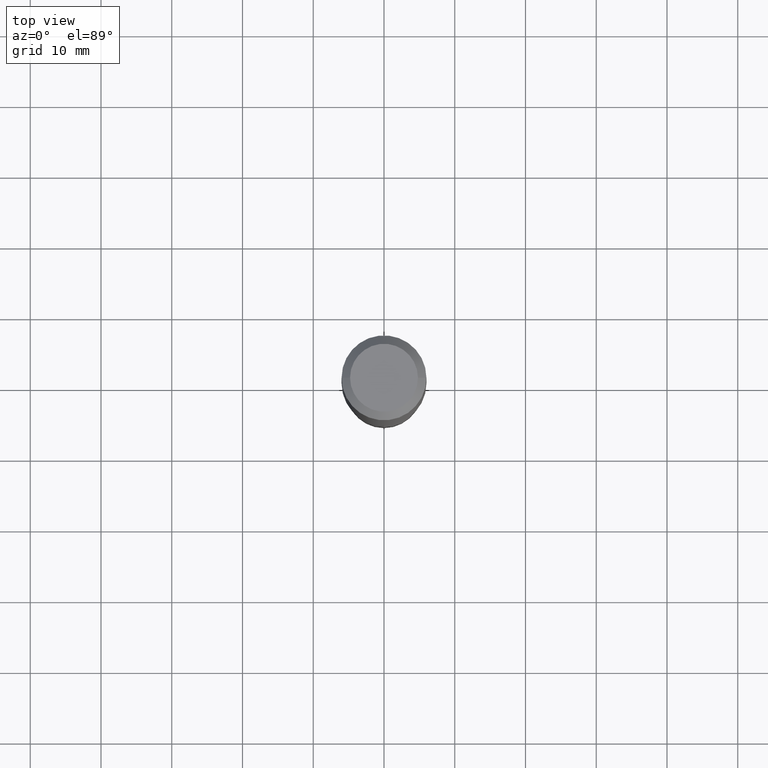
[diagram: clean part render]
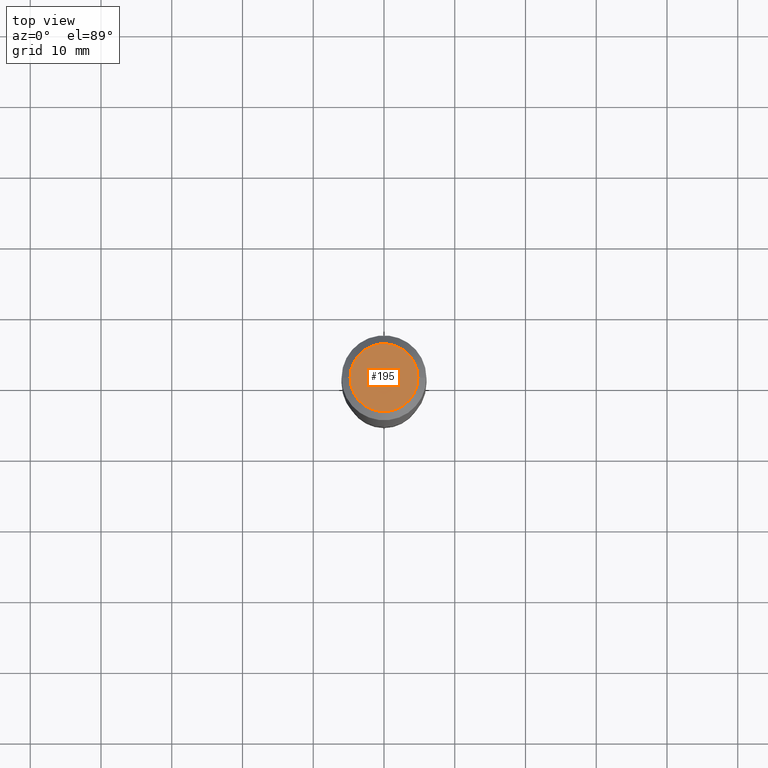
[diagram: same view with one face highlighted and labeled with its STEP entity id]
A machine part, top view. The second image highlights one B-rep face of the part: STEP entity #195.
In plain terms, the highlighted planar face has unit normal (0, -0, -1).
Its self-contained STEP definition (entity closure, byte-faithful):
#3 = EDGE_CURVE ( 'NONE', #279, #370, #10, .T. ) ;
#10 = CIRCLE ( 'NONE', #368, 0.1889600000000000168 ) ;
#48 = DIRECTION ( 'NONE',  ( -1.000000000000000000, 6.982962677686265922E-15, -4.876176775795935793E-29 ) ) ;
#76 = DIRECTION ( 'NONE',  ( -2.445468806185136597E-29, 3.491481338843145583E-15, 1.000000000000000000 ) ) ;
#87 = CARTESIAN_POINT ( 'NONE',  ( -0.1889600000000000168, 1.401969416799070942E-15, 3.855188123706346622E-18 ) ) ;
#103 = DIRECTION ( 'NONE',  ( 1.000000000000000000, -6.982962677686266711E-15, 4.876185090822587894E-29 ) ) ;
#112 = EDGE_LOOP ( 'NONE', ( #292, #325 ) ) ;
#120 = CARTESIAN_POINT ( 'NONE',  ( -9.427742298522546243E-47, 1.346031739168365344E-32, 3.855188123715862256E-18 ) ) ;
#130 = EDGE_CURVE ( 'NONE', #370, #279, #287, .T. ) ;
#137 = CARTESIAN_POINT ( 'NONE',  ( -4.713871149261273121E-47, 6.730158695841826722E-33, 1.927594061857931128E-18 ) ) ;
#195 = ADVANCED_FACE ( 'NONE', ( #352 ), #286, .F. ) ;
#279 = VERTEX_POINT ( 'NONE', #87 ) ;
#286 = PLANE ( 'NONE',  #330 ) ;
#287 = CIRCLE ( 'NONE', #308, 0.1889600000000000168 ) ;
#292 = ORIENTED_EDGE ( 'NONE', *, *, #3, .T. ) ;
#308 = AXIS2_PLACEMENT_3D ( 'NONE', #120, #76, #417 ) ;
#325 = ORIENTED_EDGE ( 'NONE', *, *, #130, .T. ) ;
#326 = CARTESIAN_POINT ( 'NONE',  ( 0.1889600000000000168, -1.540873453589747738E-15, 3.855188123725863225E-18 ) ) ;
#330 = AXIS2_PLACEMENT_3D ( 'NONE', #137, #399, #48 ) ;
#352 = FACE_OUTER_BOUND ( 'NONE', #112, .T. ) ;
#368 = AXIS2_PLACEMENT_3D ( 'NONE', #443, #486, #103 ) ;
#370 = VERTEX_POINT ( 'NONE', #326 ) ;
#399 = DIRECTION ( 'NONE',  ( 2.438088387897960049E-29, -3.491481338843145188E-15, -1.000000000000000000 ) ) ;
#417 = DIRECTION ( 'NONE',  ( 1.000000000000000000, -6.982962677686266711E-15, 4.876185090822587894E-29 ) ) ;
#443 = CARTESIAN_POINT ( 'NONE',  ( -9.427742298522546243E-47, 1.346031739168365344E-32, 3.855188123715862256E-18 ) ) ;
#486 = DIRECTION ( 'NONE',  ( -2.445468806185136597E-29, 3.491481338843145583E-15, 1.000000000000000000 ) ) ;